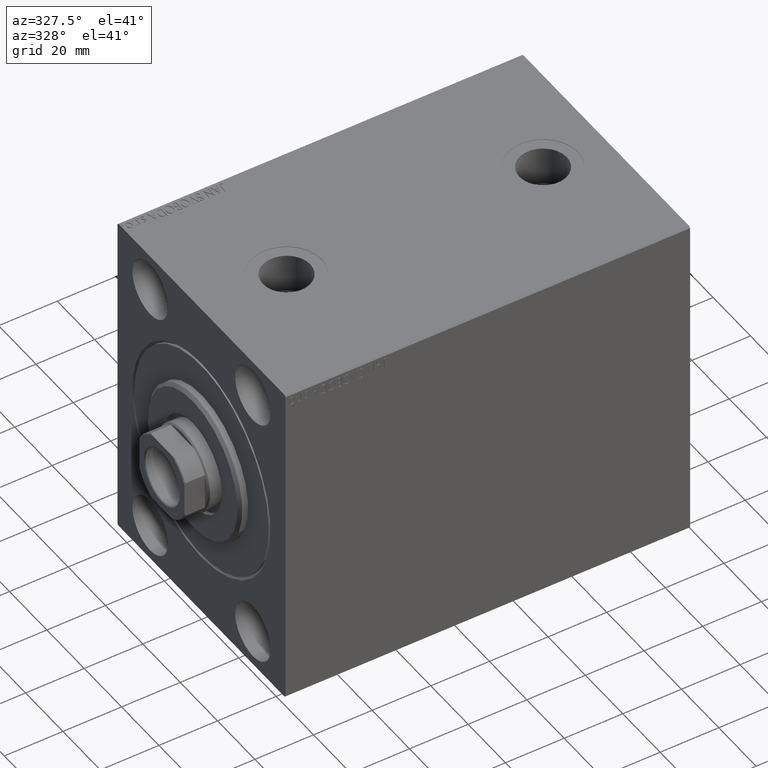
[diagram: clean part render]
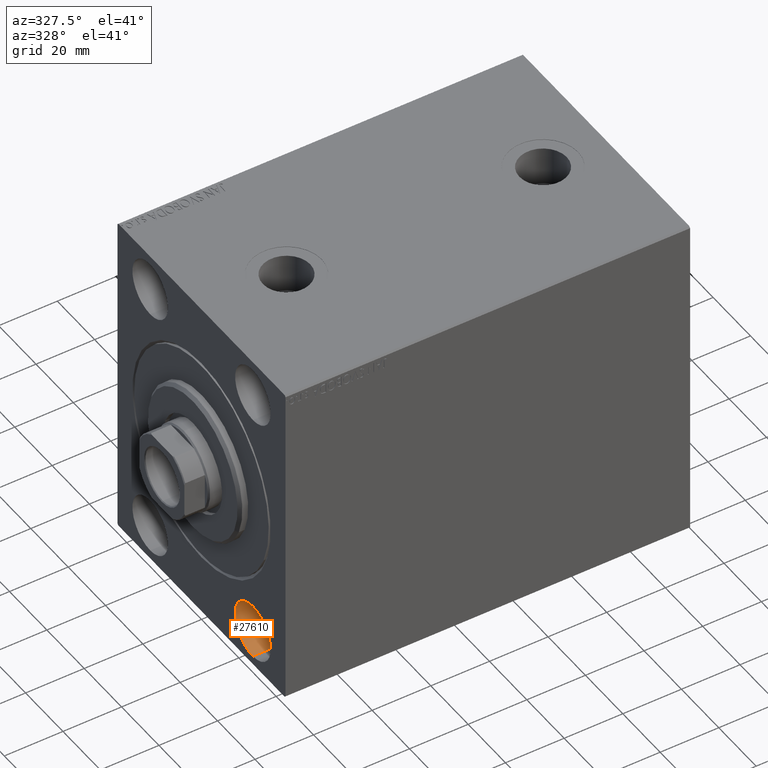
[diagram: same view with one face highlighted and labeled with its STEP entity id]
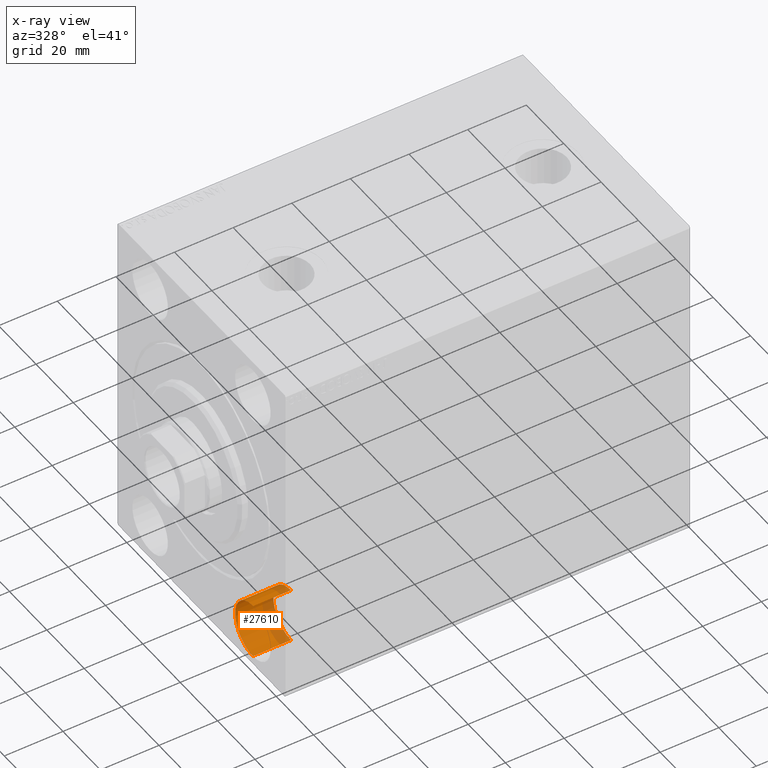
[diagram: x-ray of the same camera — body ghosted, the highlighted face saturated]
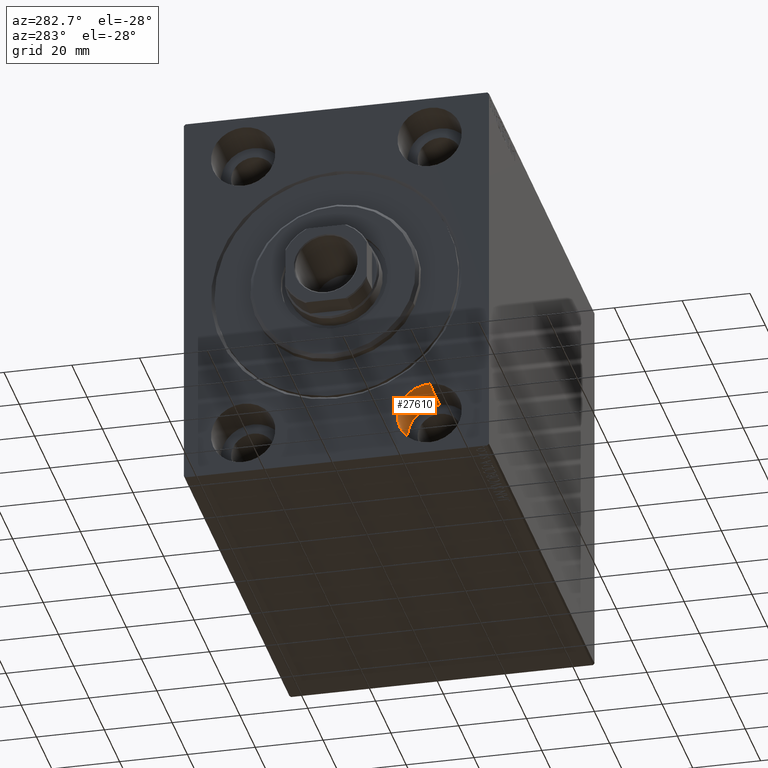
[diagram: same view with one face highlighted and labeled with its STEP entity id]
A machine part, auxiliary view. The second image highlights one B-rep face of the part: STEP entity #27610.
The next image is the same camera in x-ray: the body ghosted, the highlighted face saturated — about 27% of this face is hidden behind the body in this view.
A second angle (auxiliary view) of the same face is appended — the face is thin or edge-on in the first view.
In plain terms, the highlighted cylindrical surface (edge-blend (fillet) strip) has radius 9.5 mm, axis along (-1, -0, -0).
Its self-contained STEP definition (entity closure, byte-faithful):
#582 = AXIS2_PLACEMENT_3D ( 'NONE', #9855, #43528, #33263 ) ;
#1688 = CARTESIAN_POINT ( 'NONE',  ( 13.00000000000000000, -27.50000000000000000, -35.49999999999998579 ) ) ;
#3867 = LINE ( 'NONE', #17254, #38535 ) ;
#5646 = CARTESIAN_POINT ( 'NONE',  ( 13.00000000000000000, -27.50000000000000000, -44.99999999999998579 ) ) ;
#5864 = DIRECTION ( 'NONE',  ( -1.000000000000000000, -0.000000000000000000, -0.000000000000000000 ) ) ;
#6191 = CARTESIAN_POINT ( 'NONE',  ( 0.000000000000000000, -27.50000000000000000, -35.49999999999998579 ) ) ;
#7716 = DIRECTION ( 'NONE',  ( -1.000000000000000000, -0.000000000000000000, -0.000000000000000000 ) ) ;
#8613 = EDGE_CURVE ( 'NONE', #16435, #35415, #35338, .T. ) ;
#9376 = CARTESIAN_POINT ( 'NONE',  ( 13.00000000000000000, -27.50000000000000000, -54.49999999999998579 ) ) ;
#9855 = CARTESIAN_POINT ( 'NONE',  ( 13.00000000000000000, -27.50000000000000000, -44.99999999999998579 ) ) ;
#11042 = EDGE_LOOP ( 'NONE', ( #31472, #24776, #42950, #14779 ) ) ;
#11291 = CARTESIAN_POINT ( 'NONE',  ( 13.00000000000000000, -27.50000000000000000, -35.49999999999998579 ) ) ;
#11375 = EDGE_CURVE ( 'NONE', #35415, #25526, #29071, .T. ) ;
#12122 = CYLINDRICAL_SURFACE ( 'NONE', #30431, 9.500000000000001776 ) ;
#13392 = CIRCLE ( 'NONE', #582, 9.500000000000001776 ) ;
#14779 = ORIENTED_EDGE ( 'NONE', *, *, #11375, .T. ) ;
#15837 = CARTESIAN_POINT ( 'NONE',  ( 0.000000000000000000, -27.50000000000000000, -44.99999999999998579 ) ) ;
#16435 = VERTEX_POINT ( 'NONE', #1688 ) ;
#17254 = CARTESIAN_POINT ( 'NONE',  ( 13.00000000000000000, -27.50000000000000000, -54.49999999999998579 ) ) ;
#18091 = CARTESIAN_POINT ( 'NONE',  ( 0.000000000000000000, -27.50000000000000000, -54.49999999999998579 ) ) ;
#22591 = FACE_OUTER_BOUND ( 'NONE', #11042, .T. ) ;
#24776 = ORIENTED_EDGE ( 'NONE', *, *, #25318, .F. ) ;
#25318 = EDGE_CURVE ( 'NONE', #16435, #39373, #13392, .T. ) ;
#25526 = VERTEX_POINT ( 'NONE', #18091 ) ;
#27610 = ADVANCED_FACE ( 'NONE', ( #22591 ), #12122, .F. ) ;
#29071 = CIRCLE ( 'NONE', #34761, 9.500000000000001776 ) ;
#29632 = DIRECTION ( 'NONE',  ( -1.000000000000000000, 0.000000000000000000, 0.000000000000000000 ) ) ;
#30431 = AXIS2_PLACEMENT_3D ( 'NONE', #5646, #5864, #32831 ) ;
#31472 = ORIENTED_EDGE ( 'NONE', *, *, #43155, .F. ) ;
#31850 = VECTOR ( 'NONE', #7716, 1000.000000000000000 ) ;
#32831 = DIRECTION ( 'NONE',  ( 0.000000000000000000, 0.000000000000000000, 1.000000000000000000 ) ) ;
#33263 = DIRECTION ( 'NONE',  ( 0.000000000000000000, 0.000000000000000000, 1.000000000000000000 ) ) ;
#34761 = AXIS2_PLACEMENT_3D ( 'NONE', #15837, #29632, #43685 ) ;
#35338 = LINE ( 'NONE', #11291, #31850 ) ;
#35415 = VERTEX_POINT ( 'NONE', #6191 ) ;
#38535 = VECTOR ( 'NONE', #40444, 1000.000000000000000 ) ;
#39373 = VERTEX_POINT ( 'NONE', #9376 ) ;
#40444 = DIRECTION ( 'NONE',  ( -1.000000000000000000, -0.000000000000000000, -0.000000000000000000 ) ) ;
#42950 = ORIENTED_EDGE ( 'NONE', *, *, #8613, .T. ) ;
#43155 = EDGE_CURVE ( 'NONE', #39373, #25526, #3867, .T. ) ;
#43528 = DIRECTION ( 'NONE',  ( -1.000000000000000000, 0.000000000000000000, 0.000000000000000000 ) ) ;
#43685 = DIRECTION ( 'NONE',  ( 0.000000000000000000, 0.000000000000000000, 1.000000000000000000 ) ) ;